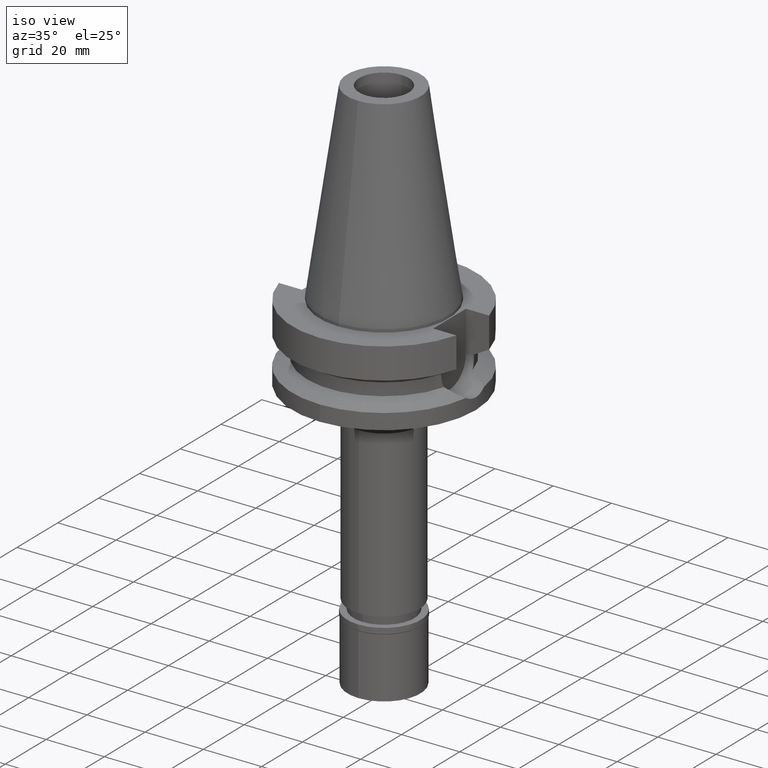
[diagram: clean part render]
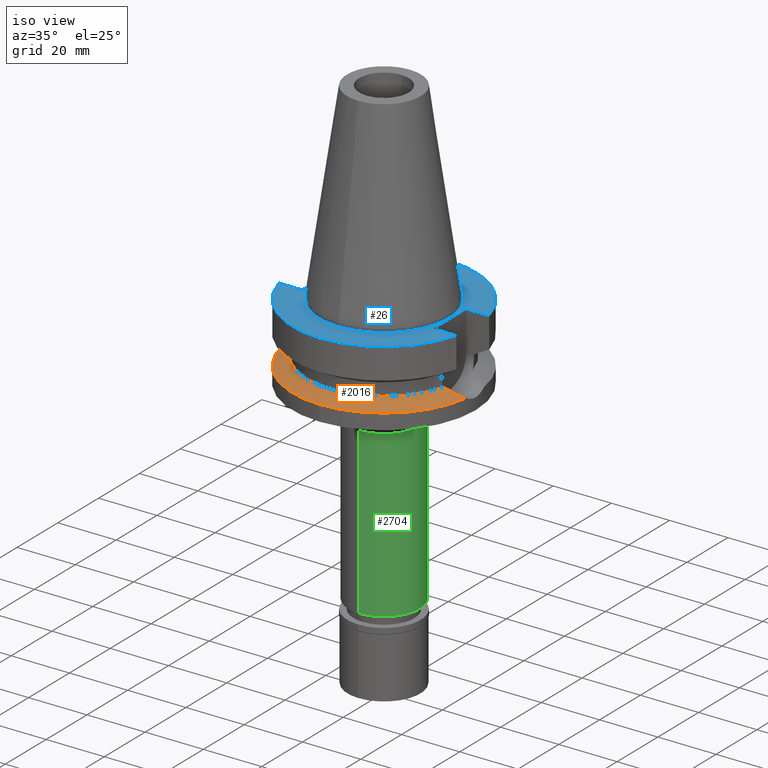
[diagram: same view with three faces highlighted in distinct colors, each labeled with its STEP entity id]
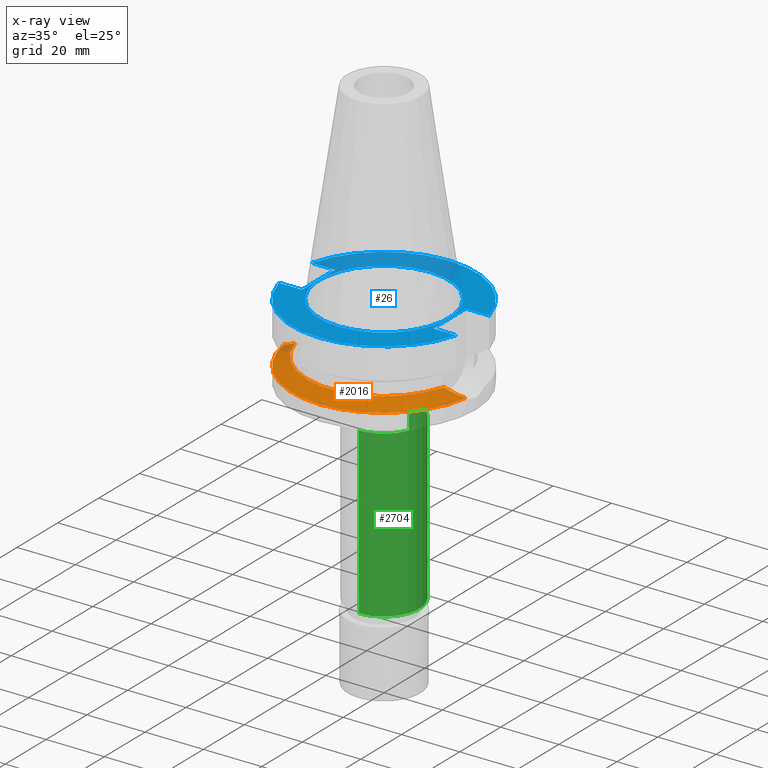
[diagram: x-ray of the same camera — body ghosted, the three highlighted faces saturated]
A machine part, iso view with three faces highlighted in distinct colors.
The next image is the same camera in x-ray (body ghosted, the three faces saturated) — at least one of them is partly hidden behind the body in this view.
Their STEP definitions:

[orange] entity #2016 — the highlighted conical surface has half-angle 60 deg.
#15 = CARTESIAN_POINT ( 'NONE',  ( 28.71809428219926730, -5.943671045323699609, -20.37969896642744771 ) ) ;
#43 = CARTESIAN_POINT ( 'NONE',  ( 30.52825590215947926, -4.979234450514741894, -21.30320508032708915 ) ) ;
#119 = ORIENTED_EDGE ( 'NONE', *, *, #332, .F. ) ;
#142 = ORIENTED_EDGE ( 'NONE', *, *, #740, .F. ) ;
#158 = AXIS2_PLACEMENT_3D ( 'NONE', #2567, #1018, #1542 ) ;
#166 = VERTEX_POINT ( 'NONE', #510 ) ;
#189 = EDGE_CURVE ( 'NONE', #1089, #3110, #1076, .T. ) ;
#332 = EDGE_CURVE ( 'NONE', #166, #2684, #2844, .T. ) ;
#372 = CARTESIAN_POINT ( 'NONE',  ( -26.57989942049774612, -6.789075183462866647, -19.28580596339507025 ) ) ;
#455 = EDGE_CURVE ( 'NONE', #865, #1089, #2299, .T. ) ;
#468 = CARTESIAN_POINT ( 'NONE',  ( 31.17899877608999759, -4.485536235554000051, -21.63449434733000132 ) ) ;
#482 = CARTESIAN_POINT ( 'NONE',  ( 26.76115846510863250, -6.731072363753950683, -19.37896953052716853 ) ) ;
#510 = CARTESIAN_POINT ( 'NONE',  ( -25.53175183775000079, -7.097862220092999941, -18.74774300138999905 ) ) ;
#538 = DIRECTION ( 'NONE',  ( 0.0000000000000000000, -1.000000000000000000, 0.0000000000000000000 ) ) ;
#555 = CARTESIAN_POINT ( 'NONE',  ( 0.0000000000000000000, 0.0000000000000000000, -20.19111867435999841 ) ) ;
#556 = CARTESIAN_POINT ( 'NONE',  ( -31.17899877608999759, -4.485536235554000051, -21.63449434733000132 ) ) ;
#576 = ORIENTED_EDGE ( 'NONE', *, *, #455, .F. ) ;
#593 = AXIS2_PLACEMENT_3D ( 'NONE', #555, #2246, #1051 ) ;
#625 = ORIENTED_EDGE ( 'NONE', *, *, #189, .F. ) ;
#695 = CARTESIAN_POINT ( 'NONE',  ( -31.17899877608999759, -4.485536235554000051, -21.63449434733000132 ) ) ;
#740 = EDGE_CURVE ( 'NONE', #2684, #865, #1739, .T. ) ;
#813 = CARTESIAN_POINT ( 'NONE',  ( -30.47198970200773260, -5.021921852393905539, -21.27456029764324086 ) ) ;
#831 = FACE_OUTER_BOUND ( 'NONE', #2956, .T. ) ;
#832 = CARTESIAN_POINT ( 'NONE',  ( -27.55944518372609764, -6.434906053627025280, -19.78679735041010801 ) ) ;
#865 = VERTEX_POINT ( 'NONE', #1850 ) ;
#922 = AXIS2_PLACEMENT_3D ( 'NONE', #2245, #2517, #538 ) ;
#1018 = DIRECTION ( 'NONE',  ( 0.0000000000000000000, 0.0000000000000000000, 1.000000000000000000 ) ) ;
#1051 = DIRECTION ( 'NONE',  ( 0.0000000000000000000, -1.000000000000000000, 0.0000000000000000000 ) ) ;
#1066 = CARTESIAN_POINT ( 'NONE',  ( -28.07491609726974957, -6.230712530917043246, -20.05021991762508549 ) ) ;
#1076 = CIRCLE ( 'NONE', #922, 31.50000000000000000 ) ;
#1089 = VERTEX_POINT ( 'NONE', #1932 ) ;
#1183 = CARTESIAN_POINT ( 'NONE',  ( 28.59764403135178057, -5.999316281804194517, -20.31819322618350299 ) ) ;
#1278 = AXIS2_PLACEMENT_3D ( 'NONE', #2831, #2817, #1860 ) ;
#1367 = CARTESIAN_POINT ( 'NONE',  ( -27.17673247467731912, -6.577794179094886395, -19.59118946902604108 ) ) ;
#1386 = CARTESIAN_POINT ( 'NONE',  ( 25.53175183775000079, -7.097862220092999941, -18.74774300138999905 ) ) ;
#1434 = CARTESIAN_POINT ( 'NONE',  ( 26.16799197410517408, -6.922970709024157010, -19.07460973475269483 ) ) ;
#1542 = DIRECTION ( 'NONE',  ( 0.0000000000000000000, -1.000000000000000000, 0.0000000000000000000 ) ) ;
#1557 = CARTESIAN_POINT ( 'NONE',  ( -27.51019403082622006, -6.453733784906615867, -19.76163599653231984 ) ) ;
#1589 = CARTESIAN_POINT ( 'NONE',  ( -27.32351327217896753, -6.524302742021120594, -19.66624734367436389 ) ) ;
#1610 = B_SPLINE_CURVE_WITH_KNOTS ( 'NONE', 3,
 ( #556, #813, #1779, #2754, #1066, #2040, #3000, #832, #1794, #2766, #1557, #3015, #1589, #1367, #372, #1634, #2085 ),
 .UNSPECIFIED., .F., .F.,
 ( 4, 2, 2, 1, 2, 2, 1, 1, 2, 4 ),
 ( 0.0000000000000000000, 0.5000000000000444089, 0.6250000000000547340, 0.6562500000000565104, 0.6640625000000565104, 0.6679687500000558442, 0.6718750000000551781, 0.6875000000000525135, 0.7500000000000416334, 1.000000000000000000 ),
 .UNSPECIFIED. ) ;
#1634 = CARTESIAN_POINT ( 'NONE',  ( -26.07136141180061983, -6.949532794770113320, -19.02496603194445157 ) ) ;
#1666 = CARTESIAN_POINT ( 'NONE',  ( 27.58629773358622828, -6.426244024404570432, -19.80139560393833165 ) ) ;
#1739 = B_SPLINE_CURVE_WITH_KNOTS ( 'NONE', 3,
 ( #2873, #1434, #482, #1666, #2426, #1938, #1950, #1183, #15, #2646, #43, #468 ),
 .UNSPECIFIED., .F., .F.,
 ( 4, 2, 2, 2, 2, 4 ),
 ( 0.0000000000000000000, 0.2499999999999998890, 0.3750000000000003886, 0.4375000000000011657, 0.5000000000000019984, 1.000000000000000000 ),
 .UNSPECIFIED. ) ;
#1779 = CARTESIAN_POINT ( 'NONE',  ( -29.61001424773289514, -5.536730340021881247, -20.83501396966053321 ) ) ;
#1794 = CARTESIAN_POINT ( 'NONE',  ( -27.53322709337918184, -6.444944907833416892, -19.77340297580216344 ) ) ;
#1850 = CARTESIAN_POINT ( 'NONE',  ( 31.17899877608999759, -4.485536235554000051, -21.63449434733000132 ) ) ;
#1860 = DIRECTION ( 'NONE',  ( 0.9898094849552905306, -0.1423979757318985240, 0.0000000000000000000 ) ) ;
#1932 = CARTESIAN_POINT ( 'NONE',  ( 0.0000000000000000000, -31.50000000000000000, -21.63449434733000132 ) ) ;
#1938 = CARTESIAN_POINT ( 'NONE',  ( 28.23084014529919372, -6.161845686900797148, -20.13084893119207308 ) ) ;
#1950 = CARTESIAN_POINT ( 'NONE',  ( 28.35490284253969762, -6.107982027023988181, -20.19422062086592007 ) ) ;
#1956 = CONICAL_SURFACE ( 'NONE', #593, 29.00000000000000000, 1.047197551196400456 ) ;
#2016 = ADVANCED_FACE ( 'NONE', ( #831 ), #1956, .T. ) ;
#2040 = CARTESIAN_POINT ( 'NONE',  ( -27.73290827709359618, -6.367465138280756776, -19.87542971003250258 ) ) ;
#2082 = ORIENTED_EDGE ( 'NONE', *, *, #2811, .F. ) ;
#2085 = CARTESIAN_POINT ( 'NONE',  ( -25.53175183775000079, -7.097862220092999941, -18.74774300138999905 ) ) ;
#2245 = CARTESIAN_POINT ( 'NONE',  ( 0.0000000000000000000, 0.0000000000000000000, -21.63449434733000132 ) ) ;
#2246 = DIRECTION ( 'NONE',  ( 0.0000000000000000000, 0.0000000000000000000, -1.000000000000000000 ) ) ;
#2299 = CIRCLE ( 'NONE', #1278, 31.50000000000001421 ) ;
#2426 = CARTESIAN_POINT ( 'NONE',  ( 27.85057574507417399, -6.321795825539474833, -19.93653679503519527 ) ) ;
#2517 = DIRECTION ( 'NONE',  ( 0.0000000000000000000, 0.0000000000000000000, -1.000000000000000000 ) ) ;
#2567 = CARTESIAN_POINT ( 'NONE',  ( 0.0000000000000000000, 0.0000000000000000000, -18.74774300138999905 ) ) ;
#2646 = CARTESIAN_POINT ( 'NONE',  ( 29.74602594734961869, -5.454492833470019342, -20.90464650809376224 ) ) ;
#2684 = VERTEX_POINT ( 'NONE', #1386 ) ;
#2754 = CARTESIAN_POINT ( 'NONE',  ( -28.33883695464863450, -6.117674652825686898, -20.18516464495150586 ) ) ;
#2766 = CARTESIAN_POINT ( 'NONE',  ( -27.52447764734435864, -6.448286861994785291, -19.76893320922754427 ) ) ;
#2811 = EDGE_CURVE ( 'NONE', #3110, #166, #1610, .T. ) ;
#2817 = DIRECTION ( 'NONE',  ( 0.0000000000000000000, 0.0000000000000000000, -1.000000000000000000 ) ) ;
#2831 = CARTESIAN_POINT ( 'NONE',  ( 0.0000000000000000000, 0.0000000000000000000, -21.63449434733000132 ) ) ;
#2844 = CIRCLE ( 'NONE', #158, 26.50000000000000000 ) ;
#2873 = CARTESIAN_POINT ( 'NONE',  ( 25.53175183775000079, -7.097862220092999941, -18.74774300138999905 ) ) ;
#2956 = EDGE_LOOP ( 'NONE', ( #625, #576, #142, #119, #2082 ) ) ;
#3000 = CARTESIAN_POINT ( 'NONE',  ( -27.64664965027126797, -6.401369172112202577, -19.83135059662135546 ) ) ;
#3015 = CARTESIAN_POINT ( 'NONE',  ( -27.47444706037394369, -6.467341943315422448, -19.74337293435466734 ) ) ;
#3110 = VERTEX_POINT ( 'NONE', #695 ) ;

[blue] entity #26 — the highlighted planar face has unit normal (0, 0, -1).
#16 = DIRECTION ( 'NONE',  ( 0.0000000000000000000, 0.0000000000000000000, 1.000000000000000000 ) ) ;
#26 = ADVANCED_FACE ( 'NONE', ( #271, #224 ), #209, .F. ) ;
#51 = AXIS2_PLACEMENT_3D ( 'NONE', #3114, #16, #1184 ) ;
#81 = CARTESIAN_POINT ( 'NONE',  ( -30.45402272279000044, 8.050000000000000711, -1.000000000000000000 ) ) ;
#85 = LINE ( 'NONE', #2276, #1481 ) ;
#136 = EDGE_CURVE ( 'NONE', #1361, #2912, #1984, .T. ) ;
#163 = VERTEX_POINT ( 'NONE', #1710 ) ;
#206 = CARTESIAN_POINT ( 'NONE',  ( 22.50000000000000000, -8.050000000000000711, -1.000000000000000000 ) ) ;
#209 = PLANE ( 'NONE',  #1729 ) ;
#224 = FACE_BOUND ( 'NONE', #586, .T. ) ;
#271 = FACE_OUTER_BOUND ( 'NONE', #847, .T. ) ;
#319 = EDGE_CURVE ( 'NONE', #1361, #3081, #85, .T. ) ;
#326 = VERTEX_POINT ( 'NONE', #830 ) ;
#368 = LINE ( 'NONE', #1832, #960 ) ;
#387 = LINE ( 'NONE', #876, #1236 ) ;
#441 = ORIENTED_EDGE ( 'NONE', *, *, #2235, .F. ) ;
#462 = AXIS2_PLACEMENT_3D ( 'NONE', #1322, #2247, #2721 ) ;
#479 = DIRECTION ( 'NONE',  ( 0.0000000000000000000, 1.000000000000000000, 0.0000000000000000000 ) ) ;
#550 = CARTESIAN_POINT ( 'NONE',  ( 30.45402272279000044, -8.050000000000000711, -1.000000000000000000 ) ) ;
#586 = EDGE_LOOP ( 'NONE', ( #2453, #441 ) ) ;
#598 = DIRECTION ( 'NONE',  ( 1.000000000000000000, -3.506251283225999947E-14, 0.0000000000000000000 ) ) ;
#622 = VERTEX_POINT ( 'NONE', #2205 ) ;
#830 = CARTESIAN_POINT ( 'NONE',  ( 0.0000000000000000000, 22.22500000000000142, -1.000000000000000000 ) ) ;
#847 = EDGE_LOOP ( 'NONE', ( #899, #2802, #2788, #3016, #1598, #1317, #1682, #1540 ) ) ;
#876 = CARTESIAN_POINT ( 'NONE',  ( -30.45402272279000044, -8.050000000000000711, -1.000000000000000000 ) ) ;
#899 = ORIENTED_EDGE ( 'NONE', *, *, #2490, .F. ) ;
#960 = VECTOR ( 'NONE', #598, 1000.000000000000000 ) ;
#1023 = AXIS2_PLACEMENT_3D ( 'NONE', #1680, #2689, #479 ) ;
#1112 = DIRECTION ( 'NONE',  ( 1.000000000000000000, -3.550916904668000126E-14, 0.0000000000000000000 ) ) ;
#1181 = DIRECTION ( 'NONE',  ( 0.0000000000000000000, 0.0000000000000000000, -1.000000000000000000 ) ) ;
#1184 = DIRECTION ( 'NONE',  ( 0.0000000000000000000, -1.000000000000000000, 0.0000000000000000000 ) ) ;
#1207 = EDGE_CURVE ( 'NONE', #163, #1352, #2622, .T. ) ;
#1220 = CIRCLE ( 'NONE', #462, 22.22500000000000142 ) ;
#1236 = VECTOR ( 'NONE', #1112, 1000.000000000000000 ) ;
#1253 = VECTOR ( 'NONE', #1990, 1000.000000000000000 ) ;
#1291 = CARTESIAN_POINT ( 'NONE',  ( 0.0000000000000000000, 0.0000000000000000000, -1.000000000000000000 ) ) ;
#1317 = ORIENTED_EDGE ( 'NONE', *, *, #136, .F. ) ;
#1322 = CARTESIAN_POINT ( 'NONE',  ( 0.0000000000000000000, 0.0000000000000000000, -1.000000000000000000 ) ) ;
#1352 = VERTEX_POINT ( 'NONE', #550 ) ;
#1361 = VERTEX_POINT ( 'NONE', #81 ) ;
#1381 = VERTEX_POINT ( 'NONE', #2749 ) ;
#1383 = CARTESIAN_POINT ( 'NONE',  ( 22.50000000000000000, 8.050000000000000711, -1.000000000000000000 ) ) ;
#1481 = VECTOR ( 'NONE', #1595, 1000.000000000000000 ) ;
#1495 = EDGE_CURVE ( 'NONE', #2219, #2912, #368, .T. ) ;
#1540 = ORIENTED_EDGE ( 'NONE', *, *, #2098, .F. ) ;
#1595 = DIRECTION ( 'NONE',  ( 1.000000000000000000, 3.550916904668000126E-14, 0.0000000000000000000 ) ) ;
#1598 = ORIENTED_EDGE ( 'NONE', *, *, #1495, .T. ) ;
#1664 = VECTOR ( 'NONE', #2223, 1000.000000000000000 ) ;
#1680 = CARTESIAN_POINT ( 'NONE',  ( 0.0000000000000000000, 0.0000000000000000000, -1.000000000000000000 ) ) ;
#1682 = ORIENTED_EDGE ( 'NONE', *, *, #319, .T. ) ;
#1710 = CARTESIAN_POINT ( 'NONE',  ( 22.50000000000000000, -8.050000000000000711, -1.000000000000000000 ) ) ;
#1729 = AXIS2_PLACEMENT_3D ( 'NONE', #3089, #1181, #2457 ) ;
#1746 = LINE ( 'NONE', #2278, #1253 ) ;
#1822 = LINE ( 'NONE', #1383, #2447 ) ;
#1832 = CARTESIAN_POINT ( 'NONE',  ( 22.50000000000000000, 8.050000000000000711, -1.000000000000000000 ) ) ;
#1873 = CIRCLE ( 'NONE', #2688, 31.50000000000000000 ) ;
#1963 = CIRCLE ( 'NONE', #51, 22.22500000000000142 ) ;
#1984 = CIRCLE ( 'NONE', #1023, 31.50000000000000000 ) ;
#1990 = DIRECTION ( 'NONE',  ( 0.0000000000000000000, 1.000000000000000000, 0.0000000000000000000 ) ) ;
#2098 = EDGE_CURVE ( 'NONE', #1381, #3081, #1746, .T. ) ;
#2205 = CARTESIAN_POINT ( 'NONE',  ( -30.45402272279000044, -8.050000000000000711, -1.000000000000000000 ) ) ;
#2219 = VERTEX_POINT ( 'NONE', #2398 ) ;
#2223 = DIRECTION ( 'NONE',  ( 1.000000000000000000, 3.595582526110999949E-14, 0.0000000000000000000 ) ) ;
#2235 = EDGE_CURVE ( 'NONE', #2665, #326, #1963, .T. ) ;
#2247 = DIRECTION ( 'NONE',  ( 0.0000000000000000000, 0.0000000000000000000, 1.000000000000000000 ) ) ;
#2262 = DIRECTION ( 'NONE',  ( 0.0000000000000000000, 0.0000000000000000000, -1.000000000000000000 ) ) ;
#2276 = CARTESIAN_POINT ( 'NONE',  ( -30.45402272279000044, 8.050000000000000711, -1.000000000000000000 ) ) ;
#2278 = CARTESIAN_POINT ( 'NONE',  ( -22.50000000000000000, -8.050000000000000711, -1.000000000000000000 ) ) ;
#2398 = CARTESIAN_POINT ( 'NONE',  ( 22.50000000000000000, 8.050000000000000711, -1.000000000000000000 ) ) ;
#2447 = VECTOR ( 'NONE', #2573, 1000.000000000000000 ) ;
#2453 = ORIENTED_EDGE ( 'NONE', *, *, #2789, .F. ) ;
#2457 = DIRECTION ( 'NONE',  ( 0.0000000000000000000, -1.000000000000000000, 0.0000000000000000000 ) ) ;
#2490 = EDGE_CURVE ( 'NONE', #622, #1381, #387, .T. ) ;
#2573 = DIRECTION ( 'NONE',  ( 0.0000000000000000000, -1.000000000000000000, 0.0000000000000000000 ) ) ;
#2622 = LINE ( 'NONE', #206, #1664 ) ;
#2665 = VERTEX_POINT ( 'NONE', #3090 ) ;
#2688 = AXIS2_PLACEMENT_3D ( 'NONE', #1291, #2262, #2709 ) ;
#2689 = DIRECTION ( 'NONE',  ( 0.0000000000000000000, 0.0000000000000000000, -1.000000000000000000 ) ) ;
#2709 = DIRECTION ( 'NONE',  ( 0.0000000000000000000, -1.000000000000000000, 0.0000000000000000000 ) ) ;
#2721 = DIRECTION ( 'NONE',  ( 0.0000000000000000000, 1.000000000000000000, 0.0000000000000000000 ) ) ;
#2736 = EDGE_CURVE ( 'NONE', #1352, #622, #1873, .T. ) ;
#2749 = CARTESIAN_POINT ( 'NONE',  ( -22.50000000000000000, -8.050000000000000711, -1.000000000000000000 ) ) ;
#2788 = ORIENTED_EDGE ( 'NONE', *, *, #1207, .F. ) ;
#2789 = EDGE_CURVE ( 'NONE', #326, #2665, #1220, .T. ) ;
#2802 = ORIENTED_EDGE ( 'NONE', *, *, #2736, .F. ) ;
#2824 = CARTESIAN_POINT ( 'NONE',  ( 30.45402272279000044, 8.050000000000000711, -1.000000000000000000 ) ) ;
#2834 = EDGE_CURVE ( 'NONE', #2219, #163, #1822, .T. ) ;
#2912 = VERTEX_POINT ( 'NONE', #2824 ) ;
#3016 = ORIENTED_EDGE ( 'NONE', *, *, #2834, .F. ) ;
#3081 = VERTEX_POINT ( 'NONE', #3103 ) ;
#3089 = CARTESIAN_POINT ( 'NONE',  ( 0.0000000000000000000, 0.0000000000000000000, -1.000000000000000000 ) ) ;
#3090 = CARTESIAN_POINT ( 'NONE',  ( 0.0000000000000000000, -22.22500000000000142, -1.000000000000000000 ) ) ;
#3103 = CARTESIAN_POINT ( 'NONE',  ( -22.50000000000000000, 8.050000000000000711, -1.000000000000000000 ) ) ;
#3114 = CARTESIAN_POINT ( 'NONE',  ( 0.0000000000000000000, 0.0000000000000000000, -1.000000000000000000 ) ) ;

[green] entity #2704 — the highlighted cylindrical surface (partial cylindrical patch) has radius 12.25 mm, axis along (0, 0, -1).
#188 = DIRECTION ( 'NONE',  ( 0.0000000000000000000, 0.0000000000000000000, -1.000000000000000000 ) ) ;
#223 = CARTESIAN_POINT ( 'NONE',  ( 0.0000000000000000000, -12.25000000000000000, -37.00000000000000000 ) ) ;
#325 = DIRECTION ( 'NONE',  ( 0.0000000000000000000, 0.0000000000000000000, -1.000000000000000000 ) ) ;
#340 = DIRECTION ( 'NONE',  ( 0.0000000000000000000, -1.000000000000000000, 0.0000000000000000000 ) ) ;
#383 = VERTEX_POINT ( 'NONE', #674 ) ;
#385 = LINE ( 'NONE', #223, #2295 ) ;
#418 = ORIENTED_EDGE ( 'NONE', *, *, #546, .T. ) ;
#546 = EDGE_CURVE ( 'NONE', #1734, #1740, #2244, .T. ) ;
#654 = DIRECTION ( 'NONE',  ( 0.0000000000000000000, 0.0000000000000000000, -1.000000000000000000 ) ) ;
#674 = CARTESIAN_POINT ( 'NONE',  ( 0.0000000000000000000, -12.25000000000000000, -37.00000000000000000 ) ) ;
#776 = ORIENTED_EDGE ( 'NONE', *, *, #2548, .T. ) ;
#974 = LINE ( 'NONE', #1939, #1859 ) ;
#978 = CARTESIAN_POINT ( 'NONE',  ( 0.0000000000000000000, -12.25000000000000000, -93.79999999999999716 ) ) ;
#1041 = CARTESIAN_POINT ( 'NONE',  ( 0.0000000000000000000, 12.25000000000000000, -93.79999999999999716 ) ) ;
#1072 = AXIS2_PLACEMENT_3D ( 'NONE', #2533, #325, #340 ) ;
#1256 = CYLINDRICAL_SURFACE ( 'NONE', #1072, 12.25000000000000000 ) ;
#1369 = CARTESIAN_POINT ( 'NONE',  ( 0.0000000000000000000, 0.0000000000000000000, -37.00000000000000000 ) ) ;
#1399 = FACE_OUTER_BOUND ( 'NONE', #2240, .T. ) ;
#1470 = DIRECTION ( 'NONE',  ( 0.0000000000000000000, 0.0000000000000000000, 1.000000000000000000 ) ) ;
#1473 = ORIENTED_EDGE ( 'NONE', *, *, #2254, .F. ) ;
#1555 = VERTEX_POINT ( 'NONE', #2558 ) ;
#1734 = VERTEX_POINT ( 'NONE', #978 ) ;
#1740 = VERTEX_POINT ( 'NONE', #1041 ) ;
#1824 = DIRECTION ( 'NONE',  ( 0.0000000000000000000, 1.000000000000000000, 0.0000000000000000000 ) ) ;
#1859 = VECTOR ( 'NONE', #654, 1000.000000000000000 ) ;
#1939 = CARTESIAN_POINT ( 'NONE',  ( 0.0000000000000000000, 12.25000000000000000, -37.00000000000000000 ) ) ;
#2011 = ORIENTED_EDGE ( 'NONE', *, *, #2982, .T. ) ;
#2019 = CIRCLE ( 'NONE', #2171, 12.25000000000000000 ) ;
#2171 = AXIS2_PLACEMENT_3D ( 'NONE', #1369, #2552, #1824 ) ;
#2240 = EDGE_LOOP ( 'NONE', ( #776, #2011, #418, #1473 ) ) ;
#2244 = CIRCLE ( 'NONE', #2599, 12.25000000000000000 ) ;
#2254 = EDGE_CURVE ( 'NONE', #1555, #1740, #974, .T. ) ;
#2295 = VECTOR ( 'NONE', #188, 1000.000000000000000 ) ;
#2533 = CARTESIAN_POINT ( 'NONE',  ( 0.0000000000000000000, 0.0000000000000000000, 0.0000000000000000000 ) ) ;
#2548 = EDGE_CURVE ( 'NONE', #1555, #383, #2019, .T. ) ;
#2552 = DIRECTION ( 'NONE',  ( 0.0000000000000000000, 0.0000000000000000000, -1.000000000000000000 ) ) ;
#2558 = CARTESIAN_POINT ( 'NONE',  ( 0.0000000000000000000, 12.25000000000000000, -37.00000000000000000 ) ) ;
#2599 = AXIS2_PLACEMENT_3D ( 'NONE', #2898, #1470, #2945 ) ;
#2704 = ADVANCED_FACE ( 'NONE', ( #1399 ), #1256, .T. ) ;
#2898 = CARTESIAN_POINT ( 'NONE',  ( 0.0000000000000000000, 0.0000000000000000000, -93.79999999999999716 ) ) ;
#2945 = DIRECTION ( 'NONE',  ( 0.0000000000000000000, -1.000000000000000000, 0.0000000000000000000 ) ) ;
#2982 = EDGE_CURVE ( 'NONE', #383, #1734, #385, .T. ) ;